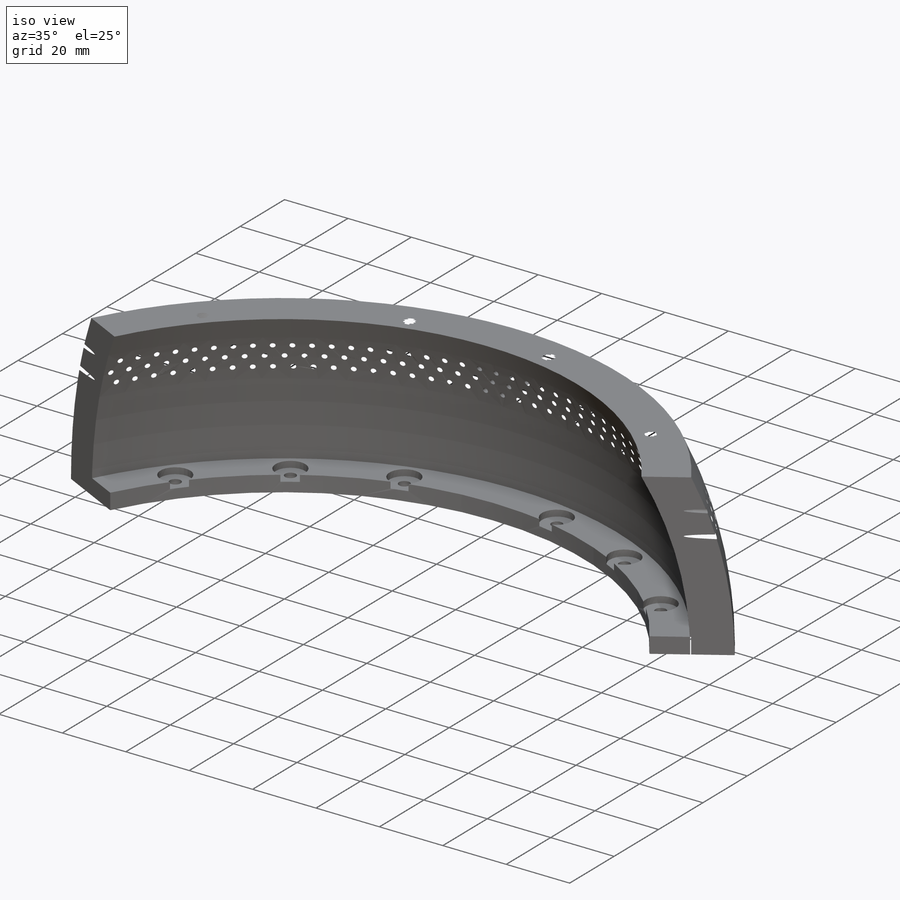
[diagram: iso view]
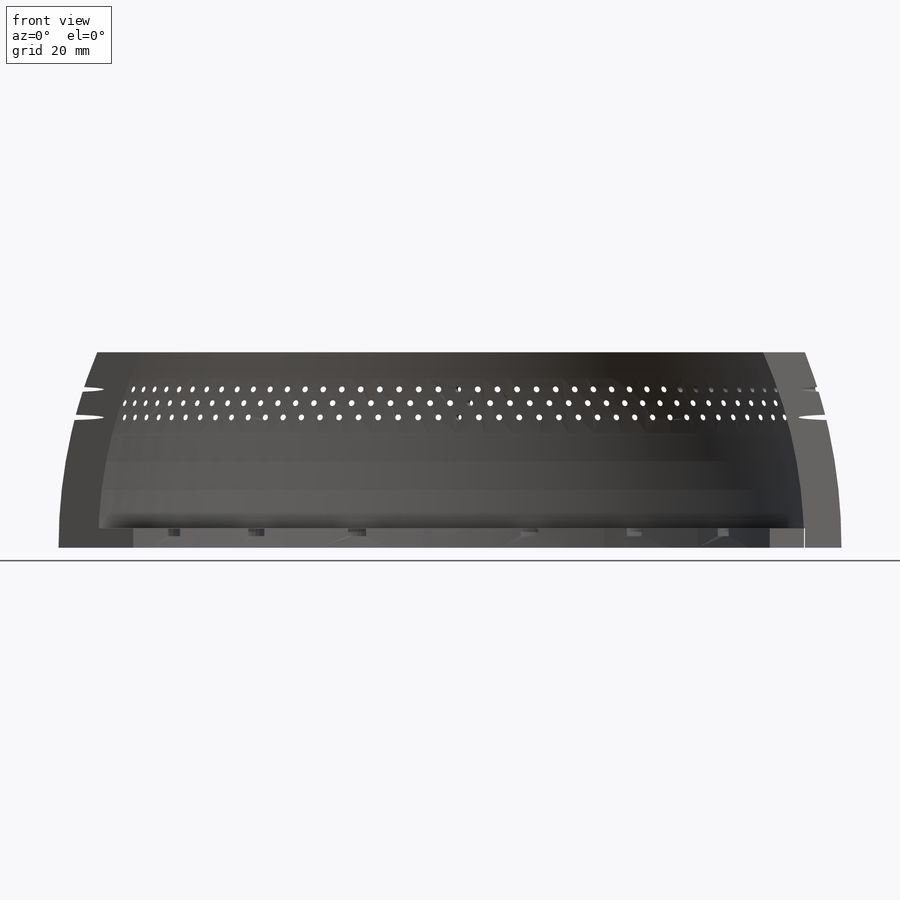
[diagram: front view]
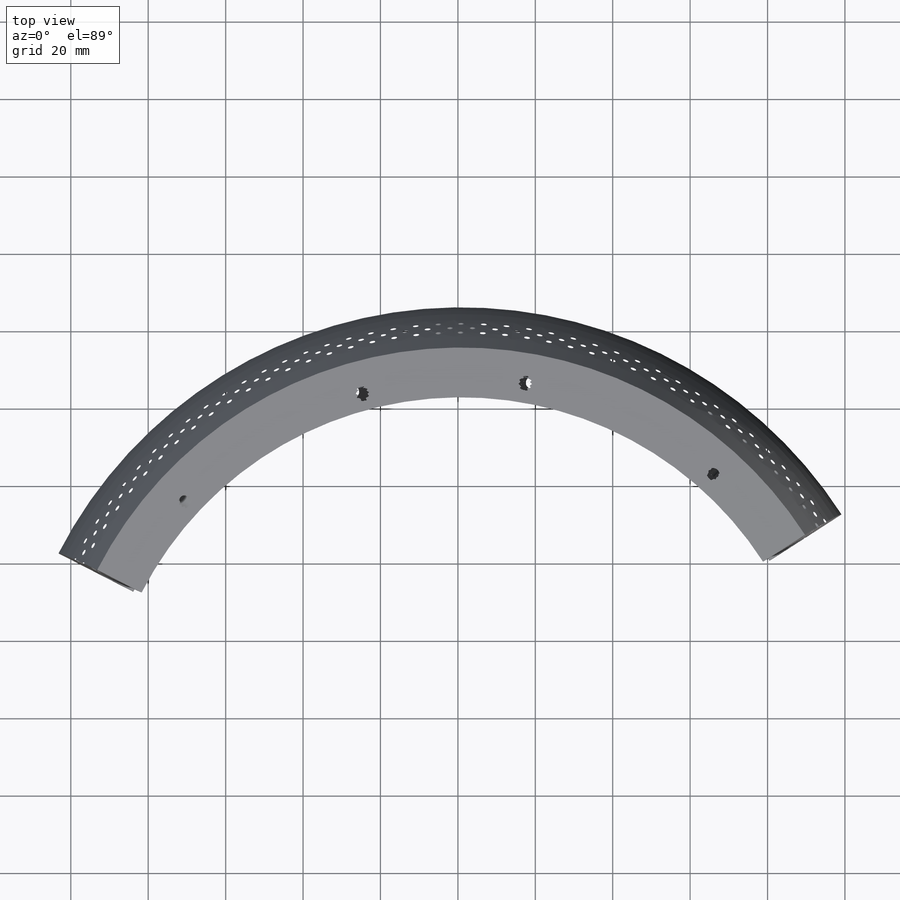
[diagram: top view]
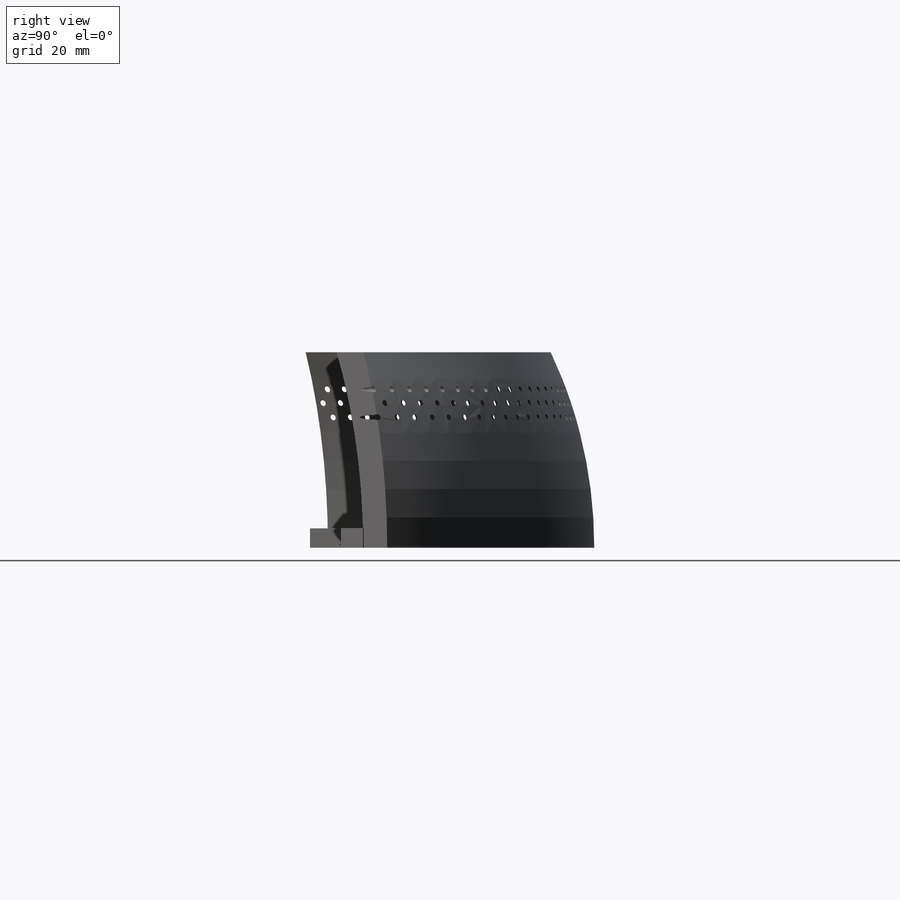
[diagram: right view]
SOLIDWORKS PART (.sldprt)
format: sldprt  version: not decoded by parser v0  size: 2,770,432 bytes
history: native  units: mm
features: sketch x29, cut_extrude x13, plane x10, sweep x4, pattern_circular x2, material x1, revolve x1, shell x1, extrude x1, hole x1, helix x1 + 1 further entry (+8 scaffold rows collapsed)
feature tree (73):
  scaffold x8  (default folders/planes/origin — collapsed)
  material  "Matériau <non spécifié>"
  "Annotations"  RD1=282.687835mm RD2=250.756235mm
  plane  "Plan de face"
  plane  "Plan de dessus"
  plane  "Plan de droite"
  sketch  "Esquisse1"  dims[c1.D1=220.0mm c1.D2=220.0mm c1.D3=102.0mm c1.D8=~110.800474mm c1.D9=110.0mm c1.D12=~40.974847mm c1.D13=125.0mm c1.D14=125.0mm c1.D15=110.0mm c1.D18=110.0mm c2.D3=80.0mm c2.D2=~130.861563mm c2.D4=119.0mm c2.D5=90.0mm c2.D6=106.0mm c2.D7=54.0mm c2.D8=12.0deg c2.D10=53.0mm c2.D11=53.0mm c2.D12=~592.190852mm c3.D10=83.0mm c3.D11=40.0mm c4.D10=281.0mm c4.D11=83.0mm c4.D13=~281.000199mm c4.D12=59.0mm c4.D16=102.0mm c4.D17=~104.486931mm c4.D18=110.0mm]
  revolve  "Révolution2"  Angle=360deg
  sketch  "Esquisse2"  dims[c1.D1=~119.056829mm c2.D1=120.0deg c2.D2=~119.056829mm c3.D2=120.0deg]
  sketch  "Esquisse3"
  cut_extrude  "Enlèv. mat.-Extru.1"  Depth=410mm
  sketch  "Esquisse4"  dims[D1=104.0mm]
  cut_extrude  "Enlèv. mat.-Extru.2"  Depth=220mm
  shell  "Coque1"  Thickness=10mm
  plane  "Plan1"  Offset=200mm
  sketch  "Esquisse6"
  cut_extrude  "Enlèv. mat.-Extru.3"  Depth=40mm
  sketch  "Esquisse7"  dims[D1=137.0mm]
  cut_extrude  "Enlèv. mat.-Extru.4"  [1 undecoded]
  plane  "Plan2"  Offset=110mm
  sketch  "Esquisse9"  dims[D1=1.5mm]
  cut_extrude  "Enlèv. mat.-Extru.7"  [1 undecoded]
  pattern_circular  "Répétition circulaire1"  Count=21 Angle=60deg
  pattern_circular  "Répétition circulaire2"  Count=21 Angle=60deg
  sketch  "Esquisse10"
  cut_extrude  "Enlèv. mat.-Extru.8"  [1 undecoded]
  plane  "Plan3"
  sketch  "Esquisse11"
  extrude  "Boss.-Extru.1"  Depth=5mm
  sketch  "Esquisse13"
  cut_extrude  "Enlèv. mat.-Extru.11"  Depth=5mm
  sketch  "Esquisse14"
  cut_extrude  "Enlèv. mat.-Extru.12"  Depth=5mm
  sketch  "Esquisse16"  dims[D1=190.0mm]
  cut_extrude  "Enlèv. mat.-Extru.13"  Depth=5mm
  sketch  "Esquisse17"  dims[c1.D1=3.0mm c1.D2=40.0mm c1.D3=20.0mm c1.D4=30.0mm c1.D5=~46.412334mm c1.D6=30.0mm c1.D7=30.0mm c2.D2=20.0mm c2.D5=30.0mm]
  sketch  "Esquisse18"
  hole  "Chambrage pour vis à tête hexagonale M31"  Diameter=3.4mm Depth=5mm
  sketch  "Esquisse3D1"
  sketch  "Esquisse19"  dims[hole-wizard template sketch: 41 standard entries collapsed; hole parameters kept: c12.Diamètre du perçage jusqu'au prochain=3.4mm c12.Profondeur du perçage jusqu'au prochain=5.0mm c12.Diamètre du chambrage=9.351mm c12.Profondeur du chambrage=2.0mm c12.Diamètre du fraisage entrant=9.401mm c12.D6=~4.399409mm c12.Angle du fraisage entrant=90.0deg]
  sketch  "Esquisse3D3"  dims[c1.D1=2.5mm c2.D1=0.0mm]
  plane  "Plan4"
  sketch  "Esquisse3D5"  dims[c1.D1=2.5mm c2.D1=~12.111757mm]
  cut_extrude  "Enlèv. mat.-Extru.16"  Depth=20mm
  sketch  "Esquisse3D7"  dims[D1=0.49mm D2=0.5mm]
  sketch  "Esquisse20"  dims[D1=2.5mm]
  helix  "Hélice/Spirale1"  Pitch=20mm
  sweep  "Enlèvement de matière-Balayage1"
  plane  "Plan5"
  plane  "Plan6"
  plane  "Plan7"
  sketch  "Esquisse21"  dims[D1=2.5mm]
  cut_extrude  "Enlèv. mat.-Extru.17"  Depth=20mm
  sketch  "Esquisse24"  dims[Hélice/Spirale2=0.0 D3=20.0mm D4=0.5mm D5=40000.0mm D7=135.0deg]
  sketch  "Esquisse3D9"  dims[D1=0.4999mm D2=0.5mm]
  sweep  "Enlèvement de matière-Balayage3"
  sketch  "Esquisse25"
  sketch  "Esquisse26"
  cut_extrude  "Enlèv. mat.-Extru.18"  Depth=20mm
  cut_extrude  "Enlèv. mat.-Extru.19"  Depth=20mm
  sketch  "Esquisse27"
  sketch  "Esquisse28"  dims[c1.Hélice/Spirale3=0.0 c1.D3=20.0mm c1.D4=0.5mm c1.D5=40000.0mm c1.D7=135.0deg c1.Hélice/Spirale4=0.0 c2.D3=20.0mm c2.D4=0.5mm c2.D5=40000.0mm c2.D7=135.0deg]
  sketch  "Esquisse3D10"  dims[D1=0.499mm D2=0.5mm]
  sweep  "Enlèvement de matière-Balayage4"
  sketch  "Esquisse3D11"  dims[D1=0.499mm D2=0.5mm]
  sweep  "Enlèvement de matière-Balayage7"
decode coverage: 35 of 53 modeling features carry decoded parameters; 1 rows unclassified (native names shown)
note: ~ marks probable driven/reference dimensions
note: 3 parameter values undecoded
summary: no parameter record found for 3 features; profile_refs inferred from adjacent sketches, not decoded
note: suppression state not decoded; provenance and decode notes live in map.json
